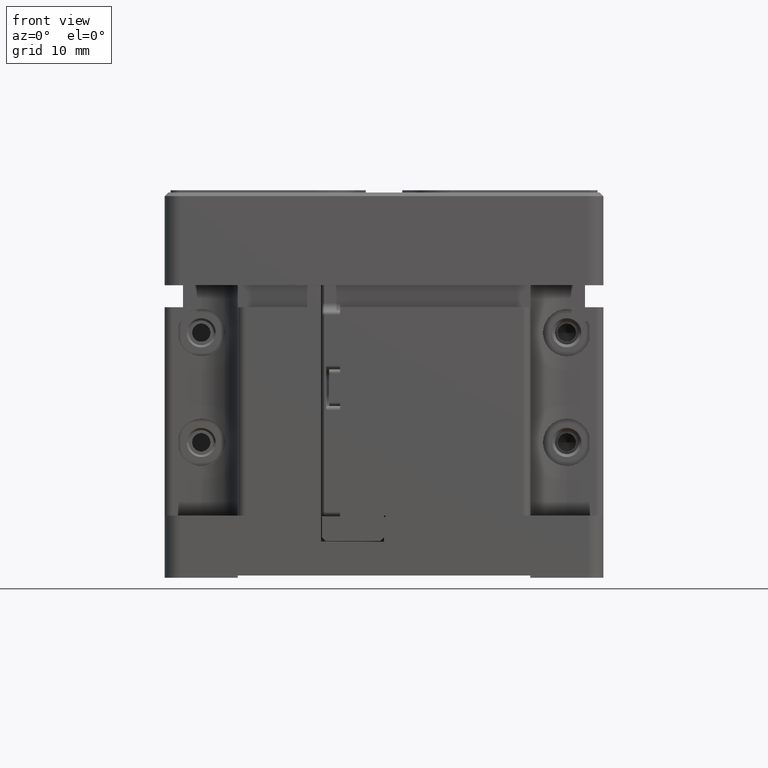
[diagram: clean part render]
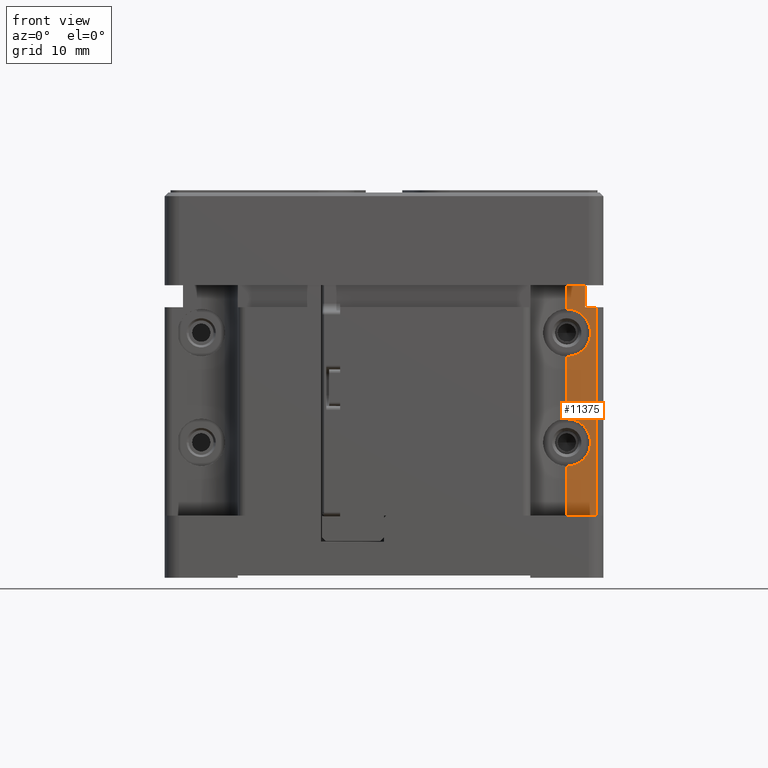
[diagram: same view with one face highlighted and labeled with its STEP entity id]
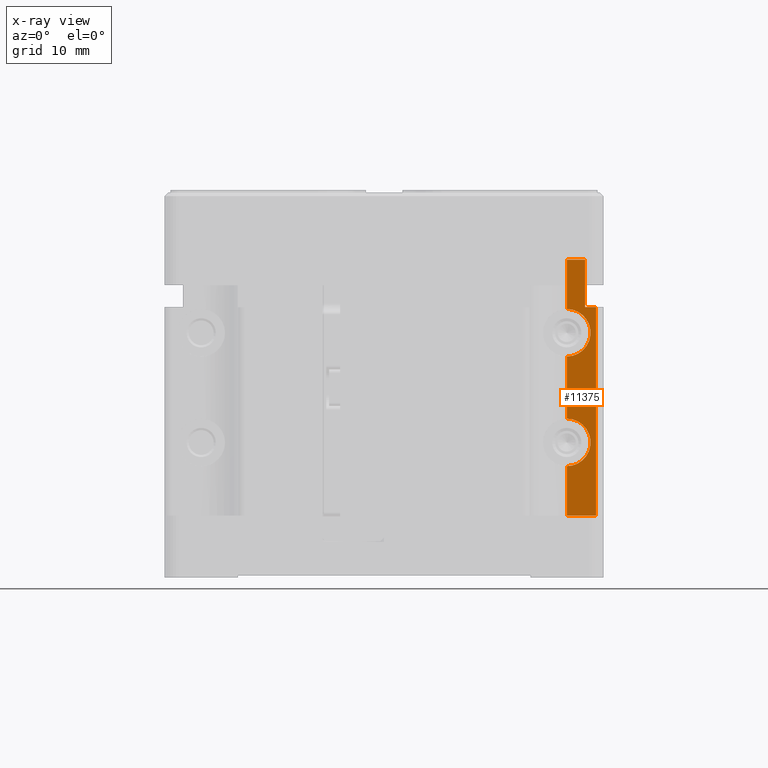
[diagram: x-ray of the same camera — body ghosted, the highlighted face saturated]
A machine part, front view. The second image highlights one B-rep face of the part: STEP entity #11375.
The next image is the same camera in x-ray: the body ghosted, the highlighted face saturated — about 0% of this face is hidden behind the body in this view.
In plain terms, the highlighted planar face has unit normal (0, -1, 0).
Its self-contained STEP definition (entity closure, byte-faithful):
#99 = VERTEX_POINT ( 'NONE', #15842 ) ;
#651 = EDGE_CURVE ( 'NONE', #2100, #99, #17193, .T. ) ;
#1143 = ORIENTED_EDGE ( 'NONE', *, *, #29009, .F. ) ;
#1618 = AXIS2_PLACEMENT_3D ( 'NONE', #25626, #25804, #34472 ) ;
#2100 = VERTEX_POINT ( 'NONE', #28444 ) ;
#2294 = CARTESIAN_POINT ( 'NONE',  ( 27.50000000000000000, -20.00000000000000000, 35.00000000000000000 ) ) ;
#2362 = CARTESIAN_POINT ( 'NONE',  ( 27.50000000000000000, -20.00000000000000000, 28.50000000000000000 ) ) ;
#2658 = CIRCLE ( 'NONE', #1618, 3.249999999999999556 ) ;
#3447 = CARTESIAN_POINT ( 'NONE',  ( 25.00000000000000000, -20.00000000000000000, 13.25000000000000178 ) ) ;
#3750 = VECTOR ( 'NONE', #31466, 1000.000000000000000 ) ;
#4449 = CARTESIAN_POINT ( 'NONE',  ( 25.00000000000000000, -20.00000000000000000, 0.000000000000000000 ) ) ;
#4555 = CARTESIAN_POINT ( 'NONE',  ( 20.00000000000000000, -20.00000000000000000, 35.00000000000000000 ) ) ;
#4726 = FACE_OUTER_BOUND ( 'NONE', #15117, .T. ) ;
#4813 = LINE ( 'NONE', #2362, #5331 ) ;
#5307 = CARTESIAN_POINT ( 'NONE',  ( 29.00000000000000000, -20.00000000000000000, 28.50000000000000000 ) ) ;
#5331 = VECTOR ( 'NONE', #18567, 1000.000000000000000 ) ;
#6138 = CARTESIAN_POINT ( 'NONE',  ( 27.50000000000000000, -20.00000000000000000, 35.00000000000000000 ) ) ;
#6205 = VERTEX_POINT ( 'NONE', #31095 ) ;
#6365 = CARTESIAN_POINT ( 'NONE',  ( 25.00000000000000000, -20.00000000000000000, 28.25000000000000000 ) ) ;
#6443 = EDGE_CURVE ( 'NONE', #17026, #6205, #24014, .T. ) ;
#7278 = ORIENTED_EDGE ( 'NONE', *, *, #25020, .F. ) ;
#8471 = DIRECTION ( 'NONE',  ( 1.000000000000000000, 0.000000000000000000, 0.000000000000000000 ) ) ;
#9754 = DIRECTION ( 'NONE',  ( 0.000000000000000000, 0.000000000000000000, -1.000000000000000000 ) ) ;
#10363 = DIRECTION ( 'NONE',  ( 0.000000000000000000, 0.000000000000000000, 1.000000000000000000 ) ) ;
#10507 = LINE ( 'NONE', #29914, #12433 ) ;
#10976 = VECTOR ( 'NONE', #21549, 1000.000000000000000 ) ;
#11135 = CARTESIAN_POINT ( 'NONE',  ( 25.00000000000000000, -20.00000000000000000, 0.000000000000000000 ) ) ;
#11375 = ADVANCED_FACE ( 'NONE', ( #4726 ), #31187, .T. ) ;
#11440 = VERTEX_POINT ( 'NONE', #16710 ) ;
#11724 = AXIS2_PLACEMENT_3D ( 'NONE', #33765, #20871, #9754 ) ;
#12433 = VECTOR ( 'NONE', #24271, 1000.000000000000000 ) ;
#13462 = EDGE_CURVE ( 'NONE', #20654, #19055, #10507, .T. ) ;
#13649 = CARTESIAN_POINT ( 'NONE',  ( 29.00000000000000000, -20.00000000000000000, 28.50000000000000000 ) ) ;
#15117 = EDGE_LOOP ( 'NONE', ( #32893, #19408, #18922, #30807, #20435, #7278, #1143, #31145, #30028, #24682 ) ) ;
#15671 = VERTEX_POINT ( 'NONE', #26400 ) ;
#15842 = CARTESIAN_POINT ( 'NONE',  ( 25.00000000000000000, -20.00000000000000000, 21.75000000000000355 ) ) ;
#16381 = VECTOR ( 'NONE', #33077, 1000.000000000000000 ) ;
#16710 = CARTESIAN_POINT ( 'NONE',  ( 25.00000000000000000, -20.00000000000000000, 6.750000000000002665 ) ) ;
#16790 = LINE ( 'NONE', #6365, #29881 ) ;
#16852 = VECTOR ( 'NONE', #22539, 1000.000000000000000 ) ;
#16853 = EDGE_CURVE ( 'NONE', #28071, #11440, #20890, .T. ) ;
#17026 = VERTEX_POINT ( 'NONE', #13649 ) ;
#17193 = LINE ( 'NONE', #3447, #16381 ) ;
#18567 = DIRECTION ( 'NONE',  ( 1.000000000000000000, 0.000000000000000000, 0.000000000000000000 ) ) ;
#18725 = LINE ( 'NONE', #4449, #34767 ) ;
#18922 = ORIENTED_EDGE ( 'NONE', *, *, #26488, .F. ) ;
#19055 = VERTEX_POINT ( 'NONE', #2294 ) ;
#19408 = ORIENTED_EDGE ( 'NONE', *, *, #6443, .F. ) ;
#20426 = LINE ( 'NONE', #6138, #16852 ) ;
#20435 = ORIENTED_EDGE ( 'NONE', *, *, #13462, .F. ) ;
#20654 = VERTEX_POINT ( 'NONE', #22353 ) ;
#20871 = DIRECTION ( 'NONE',  ( 0.000000000000000000, -1.000000000000000000, 0.000000000000000000 ) ) ;
#20890 = LINE ( 'NONE', #28316, #3750 ) ;
#21549 = DIRECTION ( 'NONE',  ( 0.000000000000000000, 0.000000000000000000, -1.000000000000000000 ) ) ;
#21724 = EDGE_CURVE ( 'NONE', #28071, #6205, #18725, .T. ) ;
#22353 = CARTESIAN_POINT ( 'NONE',  ( 25.00000000000000000, -20.00000000000000000, 35.00000000000000000 ) ) ;
#22539 = DIRECTION ( 'NONE',  ( 0.000000000000000000, 0.000000000000000000, -1.000000000000000000 ) ) ;
#22809 = CARTESIAN_POINT ( 'NONE',  ( 27.50000000000000000, -20.00000000000000000, 28.50000000000000000 ) ) ;
#23486 = EDGE_CURVE ( 'NONE', #19055, #28877, #20426, .T. ) ;
#24014 = LINE ( 'NONE', #5307, #10976 ) ;
#24271 = DIRECTION ( 'NONE',  ( 1.000000000000000000, 0.000000000000000000, 0.000000000000000000 ) ) ;
#24682 = ORIENTED_EDGE ( 'NONE', *, *, #16853, .F. ) ;
#25020 = EDGE_CURVE ( 'NONE', #15671, #20654, #16790, .T. ) ;
#25626 = CARTESIAN_POINT ( 'NONE',  ( 25.00000000000000000, -20.00000000000000000, 10.00000000000000178 ) ) ;
#25804 = DIRECTION ( 'NONE',  ( 0.000000000000000000, -1.000000000000000000, 0.000000000000000000 ) ) ;
#26400 = CARTESIAN_POINT ( 'NONE',  ( 25.00000000000000000, -20.00000000000000000, 28.25000000000000000 ) ) ;
#26488 = EDGE_CURVE ( 'NONE', #28877, #17026, #4813, .T. ) ;
#28071 = VERTEX_POINT ( 'NONE', #11135 ) ;
#28316 = CARTESIAN_POINT ( 'NONE',  ( 25.00000000000000000, -20.00000000000000000, 0.000000000000000000 ) ) ;
#28444 = CARTESIAN_POINT ( 'NONE',  ( 25.00000000000000000, -20.00000000000000000, 13.25000000000000178 ) ) ;
#28877 = VERTEX_POINT ( 'NONE', #22809 ) ;
#29009 = EDGE_CURVE ( 'NONE', #99, #15671, #33079, .T. ) ;
#29025 = EDGE_CURVE ( 'NONE', #11440, #2100, #2658, .T. ) ;
#29881 = VECTOR ( 'NONE', #30706, 1000.000000000000000 ) ;
#29914 = CARTESIAN_POINT ( 'NONE',  ( 25.00000000000000000, -20.00000000000000000, 35.00000000000000000 ) ) ;
#30028 = ORIENTED_EDGE ( 'NONE', *, *, #29025, .F. ) ;
#30706 = DIRECTION ( 'NONE',  ( 0.000000000000000000, 0.000000000000000000, 1.000000000000000000 ) ) ;
#30807 = ORIENTED_EDGE ( 'NONE', *, *, #23486, .F. ) ;
#31095 = CARTESIAN_POINT ( 'NONE',  ( 29.00000000000000000, -20.00000000000000000, 0.000000000000000000 ) ) ;
#31145 = ORIENTED_EDGE ( 'NONE', *, *, #651, .F. ) ;
#31187 = PLANE ( 'NONE',  #32852 ) ;
#31466 = DIRECTION ( 'NONE',  ( 0.000000000000000000, 0.000000000000000000, 1.000000000000000000 ) ) ;
#31527 = DIRECTION ( 'NONE',  ( 0.000000000000000000, -1.000000000000000000, 0.000000000000000000 ) ) ;
#32852 = AXIS2_PLACEMENT_3D ( 'NONE', #4555, #31527, #10363 ) ;
#32893 = ORIENTED_EDGE ( 'NONE', *, *, #21724, .T. ) ;
#33077 = DIRECTION ( 'NONE',  ( 0.000000000000000000, 0.000000000000000000, 1.000000000000000000 ) ) ;
#33079 = CIRCLE ( 'NONE', #11724, 3.249999999999999556 ) ;
#33765 = CARTESIAN_POINT ( 'NONE',  ( 25.00000000000000000, -20.00000000000000000, 25.00000000000000000 ) ) ;
#34472 = DIRECTION ( 'NONE',  ( 0.000000000000000000, 0.000000000000000000, -1.000000000000000000 ) ) ;
#34767 = VECTOR ( 'NONE', #8471, 1000.000000000000000 ) ;